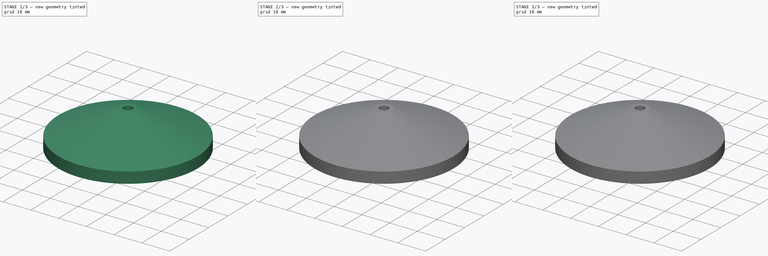
[diagram: build sequence overview — one tinted view per stage of 3, left to right]
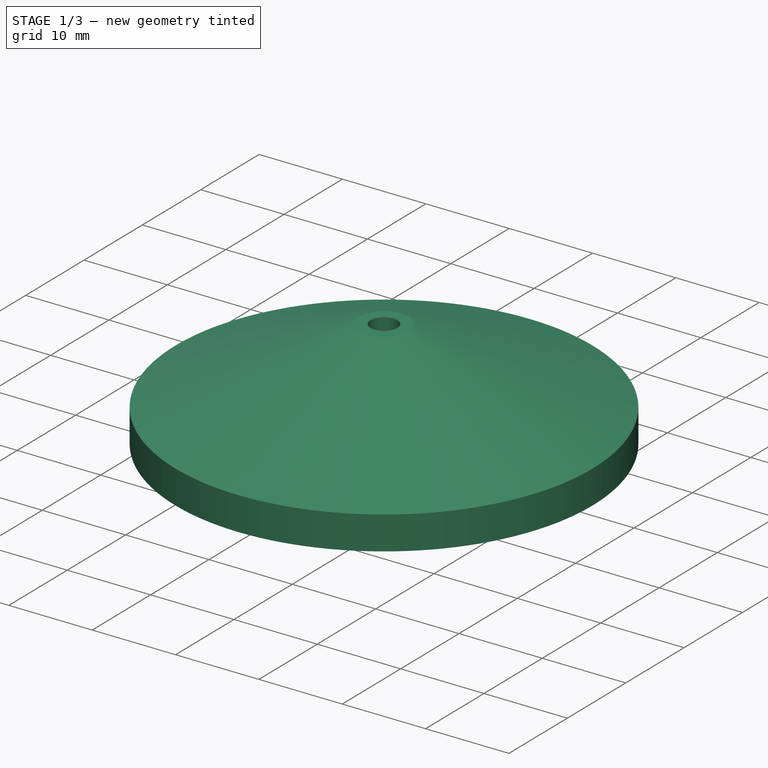
[diagram: stage 1 of 3 — iso view after this stage's code; geometry added in this stage tinted green]
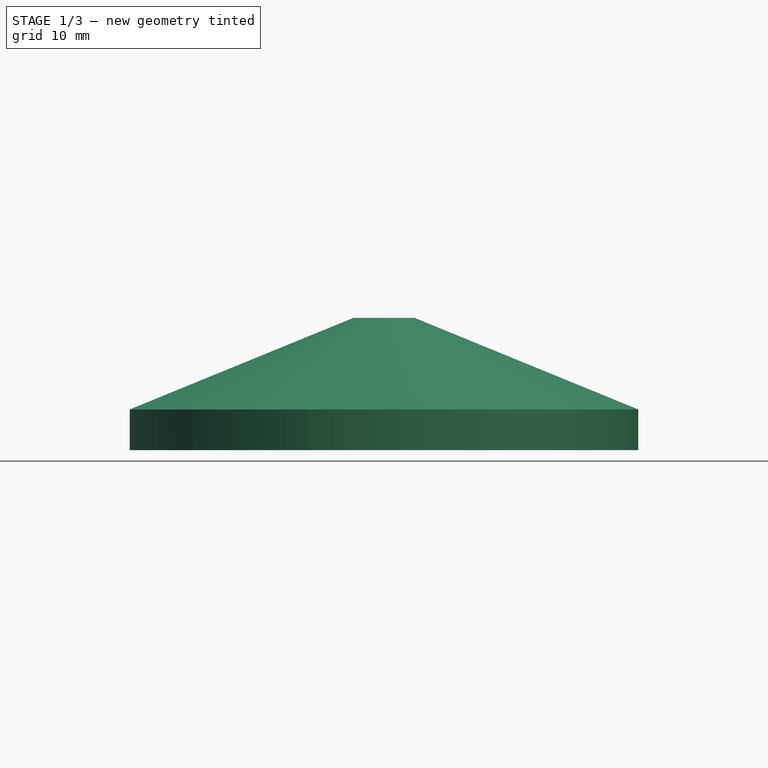
[diagram: stage 1 of 3 — front view after this stage's code; geometry added in this stage tinted green]
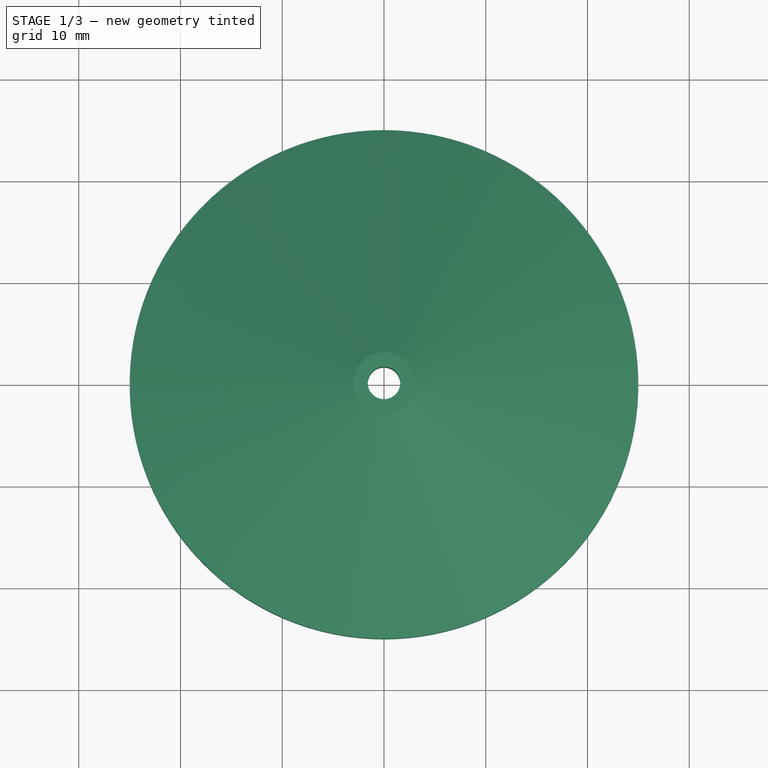
[diagram: stage 1 of 3 — top view after this stage's code; geometry added in this stage tinted green]
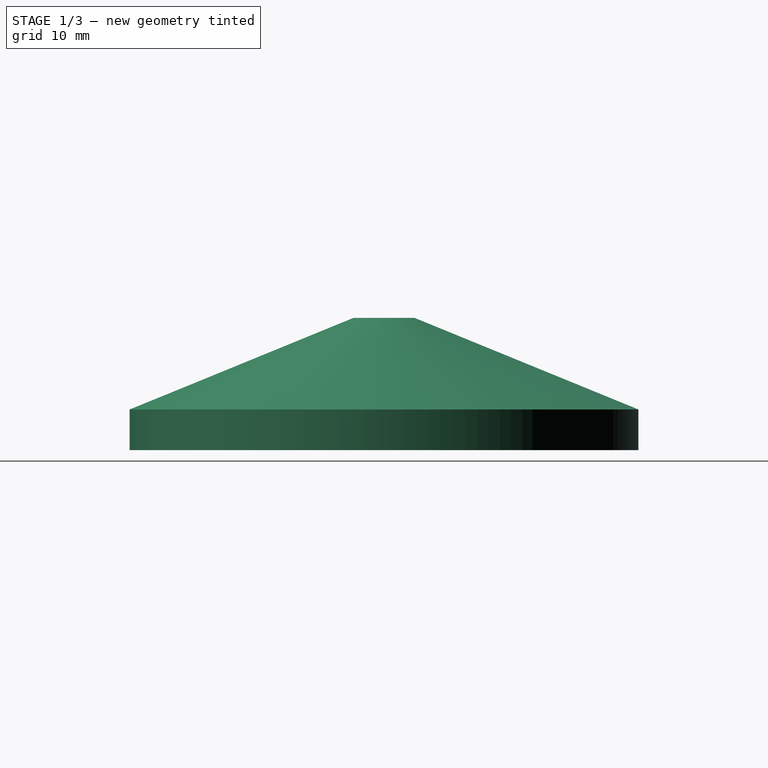
[diagram: stage 1 of 3 — right view after this stage's code; geometry added in this stage tinted green]
FCSTD DOCUMENT  (FreeCAD 0.18R14975 (Git))
Label: BobbinSocket_L_A1
License: All rights reserved
LicenseURL: http://en.wikipedia.org/wiki/All_rights_reserved
objects: Sketcher::SketchObject×3, PartDesign::Pocket×2, PartDesign::Chamfer×2, PartDesign::Revolution×1, PartDesign::Body×1, App::Part×1
note: 12 computed .brp shape members not serialized (recipe doc carries the construction recipe); baked Part::Feature solids carry a one-line shape summary decoded from their .brp

FEATURE [Sketcher::SketchObject] Sketch002
  MapMode = 5
  Placement = pos=(0,0,0) rot=(0.57735,0.57735,0.57735;2.0944rad)
  Support = -> [YZ_Plane001]
  sketch-geometry (5):
    g0: LineSegment StartX=1.6 StartY=13 StartZ=0 EndX=1.6 EndY=0 EndZ=0
    g1: LineSegment StartX=25 StartY=0 StartZ=0 EndX=25 EndY=4 EndZ=0
    g2: LineSegment StartX=1.6 StartY=0 StartZ=0 EndX=25 EndY=0 EndZ=0
    g3: LineSegment StartX=1.6 StartY=13 StartZ=0 EndX=3 EndY=13 EndZ=0
    g4: LineSegment StartX=3 StartY=13 StartZ=0 EndX=25 EndY=4 EndZ=0
  constraints (15):
    c: PointOnObject(g1,g-1)
    c: Vertical(g1)
    c: DistanceX(g-1,g0) = 1.6
    c: Vertical(g0)
    c: PointOnObject(g2,g-1)
    c: Coincident(g2,g1)
    c: DistanceY(g1,g1) = 4
    c: DistanceY(g-1,g0) = 13
    c: DistanceX(g-1,g1) = 25
    c: Coincident(g0,g3)
    c: Horizontal(g3)
    c: Coincident(g3,g4)
    c: Coincident(g4,g1)
    c: DistanceX(g-1,g3) = 3
    c: Coincident(g0,g2)
FEATURE [PartDesign::Revolution] Revolution
  Angle = 360
  Axis = (0,0,1)
  Base = (0,0,0)
  Placement = pos=(0,0,0) rot=(0.57735,0.57735,0.57735;2.0944rad)
  Profile = -> Sketch002
  ReferenceAxis = -> Sketch002 [V_Axis]
  Reversed = true
FEATURE [Sketcher::SketchObject] Sketch
  MapMode = 5
  Placement = pos=(0,0,0) rot=(0.707107,0.707107,0;3.14159rad)
  Support = -> [Revolution]
  sketch-geometry (4):
    g0: LineSegment StartX=-6 StartY=6 StartZ=0 EndX=6 EndY=6 EndZ=0
    g1: LineSegment StartX=6 StartY=6 StartZ=0 EndX=6 EndY=-6 EndZ=0
    g2: LineSegment StartX=6 StartY=-6 StartZ=0 EndX=-6 EndY=-6 EndZ=0
    g3: LineSegment StartX=-6 StartY=-6 StartZ=0 EndX=-6 EndY=6 EndZ=0
  constraints (10):
    c: Coincident(g0,g1)
    c: Coincident(g1,g2)
    c: Coincident(g2,g3)
    c: Coincident(g3,g0)
    c: Horizontal(g0)
    c: Vertical(g3)
    c: Symmetric(g1,g2,g-2)
    c: Symmetric(g0,g1,g-1)
    c: DistanceY(g1,g1) = 12
    c: DistanceX(g2,g2) = 12
FEATURE [PartDesign::Pocket] Pocket
  BaseFeature = -> Revolution
  Length = 6
  Length2 = 100
  Placement = pos=(0,0,0) rot=(0.57735,0.57735,0.57735;2.0944rad)
  Profile = -> Sketch
  Type = 0
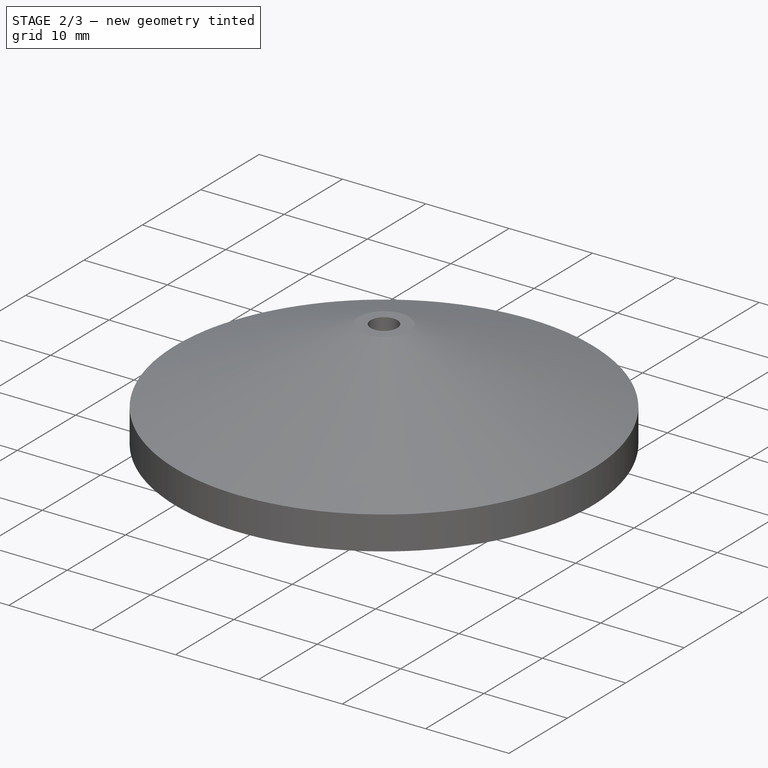
[diagram: stage 2 of 3 — iso view after this stage's code; geometry added in this stage tinted green]
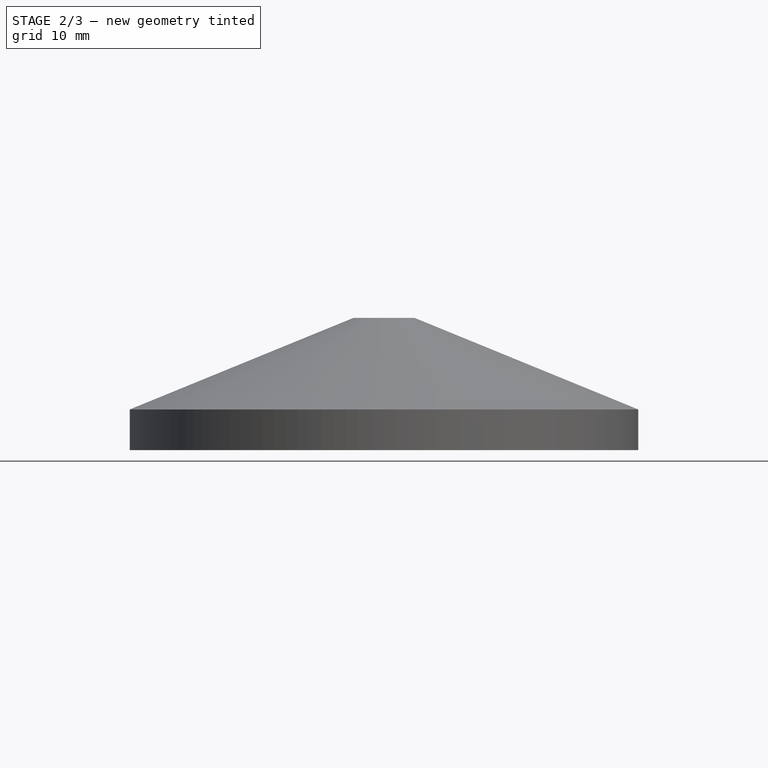
[diagram: stage 2 of 3 — front view after this stage's code; geometry added in this stage tinted green]
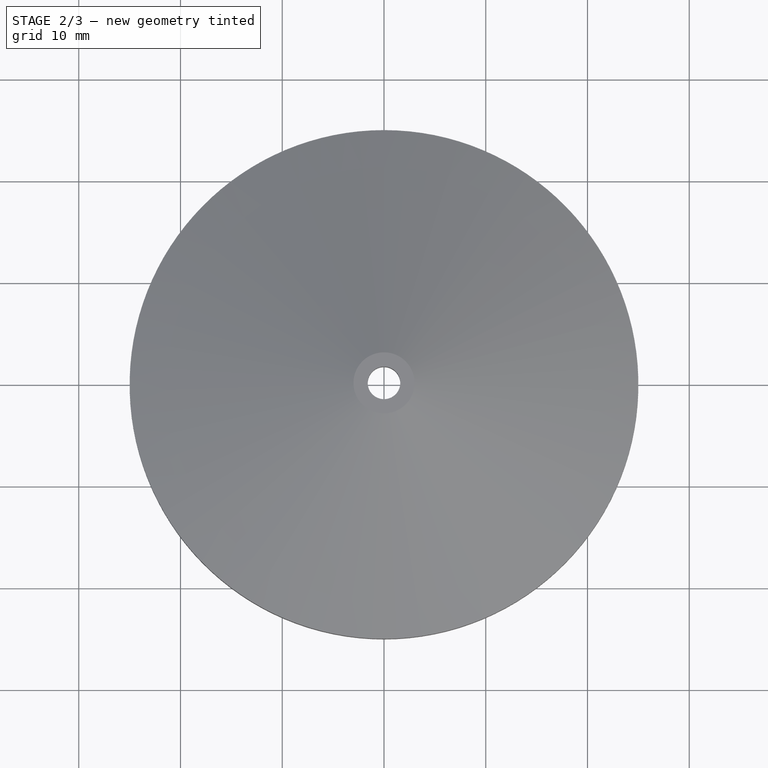
[diagram: stage 2 of 3 — top view after this stage's code; geometry added in this stage tinted green]
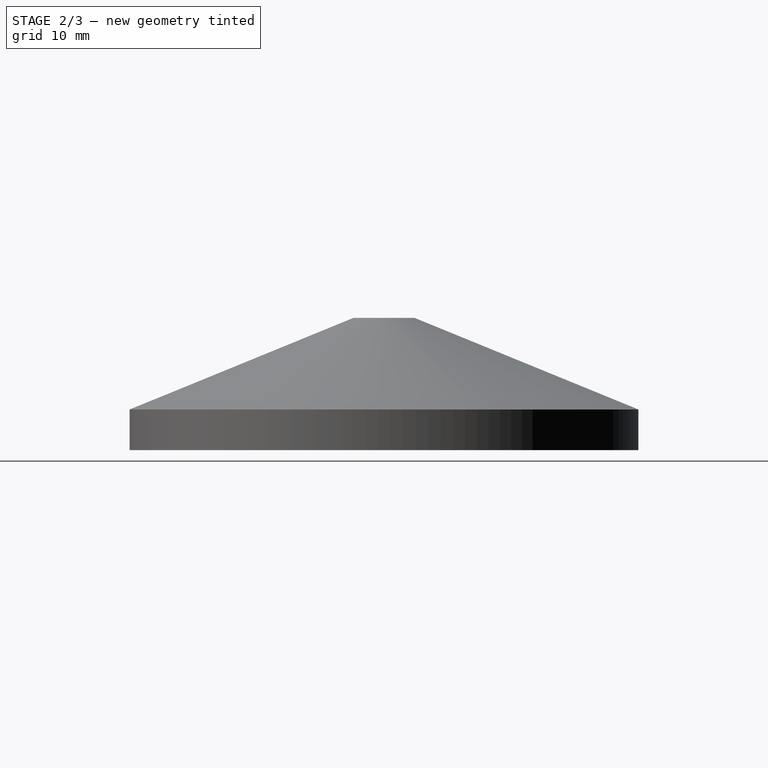
[diagram: stage 2 of 3 — right view after this stage's code; geometry added in this stage tinted green]
FEATURE [Sketcher::SketchObject] Sketch003
  MapMode = 5
  Placement = pos=(0,0,6) rot=(0.707107,0.707107,0;3.14159rad)
  Support = -> [Pocket]
  sketch-geometry (7):
    g0: LineSegment StartX=3.1 StartY=0 StartZ=0 EndX=1.55 EndY=2.68468 EndZ=0
    g1: LineSegment StartX=1.55 StartY=2.68468 StartZ=0 EndX=-1.55 EndY=2.68468 EndZ=0
    g2: LineSegment StartX=-1.55 StartY=2.68468 StartZ=0 EndX=-3.1 EndY=0 EndZ=0
    g3: LineSegment StartX=-3.1 StartY=0 StartZ=0 EndX=-1.55 EndY=-2.68468 EndZ=0
    g4: LineSegment StartX=-1.55 StartY=-2.68468 StartZ=0 EndX=1.55 EndY=-2.68468 EndZ=0
    g5: LineSegment StartX=1.55 StartY=-2.68468 StartZ=0 EndX=3.1 EndY=0 EndZ=0
    g6: Circle [constr] CenterX=0 CenterY=0 CenterZ=0 NormalX=0 NormalY=0 NormalZ=1 AngleXU=0 Radius=3.1
  constraints (16):
    c: Coincident(g0,g1)
    c: Coincident(g1,g2)
    c: Coincident(g2,g3)
    c: Coincident(g3,g4)
    c: Coincident(g4,g5)
    c: Coincident(g5,g0)
    c: Equal(g0, g1-g5) x5
    c: PointOnObject(g0,g6)
    c: PointOnObject(g1,g6)
    c: PointOnObject(g2,g6)
    c: PointOnObject(g3,g6)
    c: PointOnObject(g4,g6)
    c: PointOnObject(g5,g6)
    c: Radius(g6) = 3.1
    c: PointOnObject(g0,g-1)
    c: Coincident(g6,g-1)
FEATURE [PartDesign::Pocket] Pocket001
  BaseFeature = -> Pocket
  Length = 3
  Length2 = 100
  Placement = pos=(0,0,0) rot=(0.57735,0.57735,0.57735;2.0944rad)
  Profile = -> Sketch003
  Type = 0
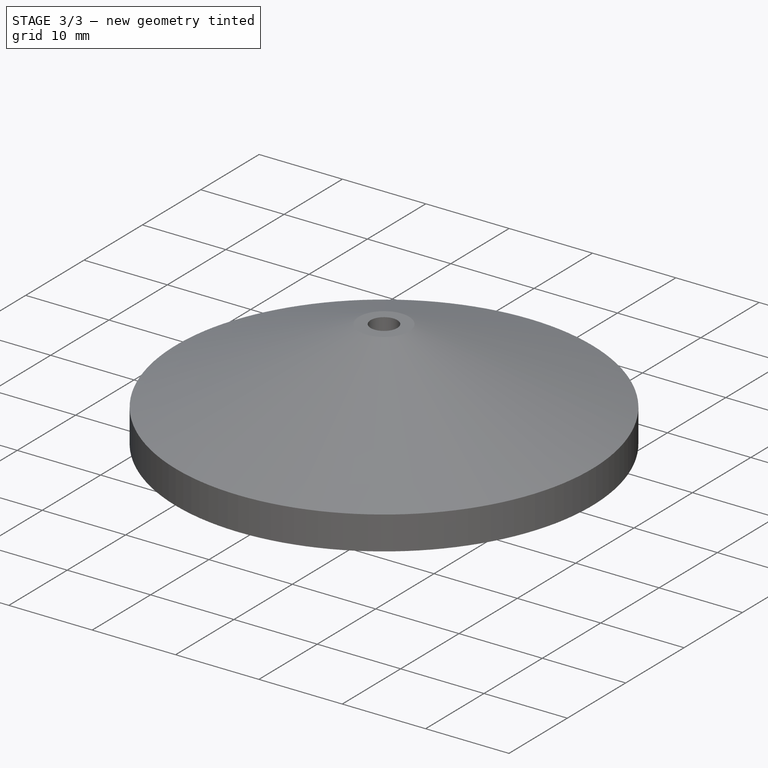
[diagram: stage 3 of 3 — iso view after this stage's code; geometry added in this stage tinted green]
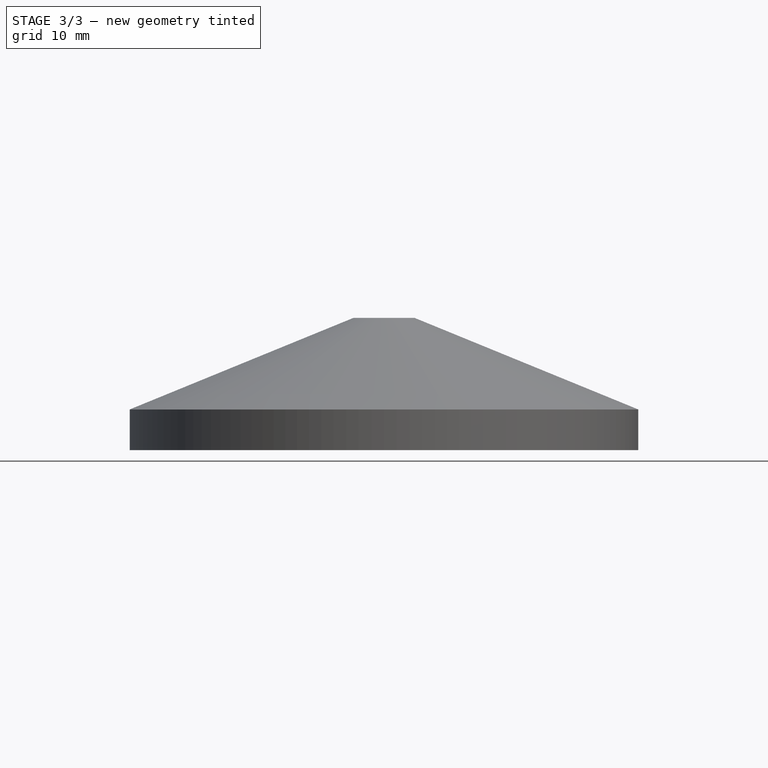
[diagram: stage 3 of 3 — front view after this stage's code; geometry added in this stage tinted green]
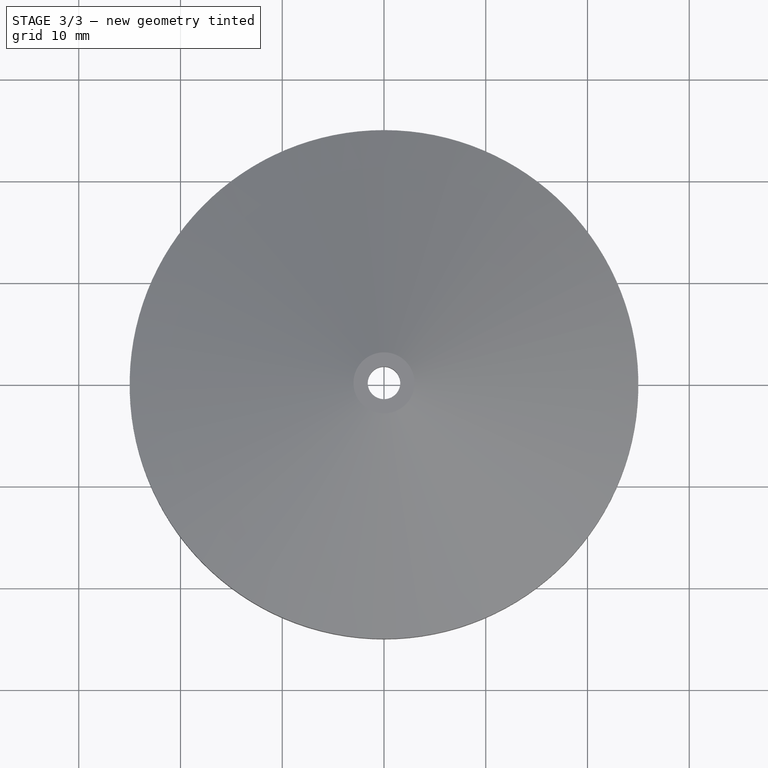
[diagram: stage 3 of 3 — top view after this stage's code; geometry added in this stage tinted green]
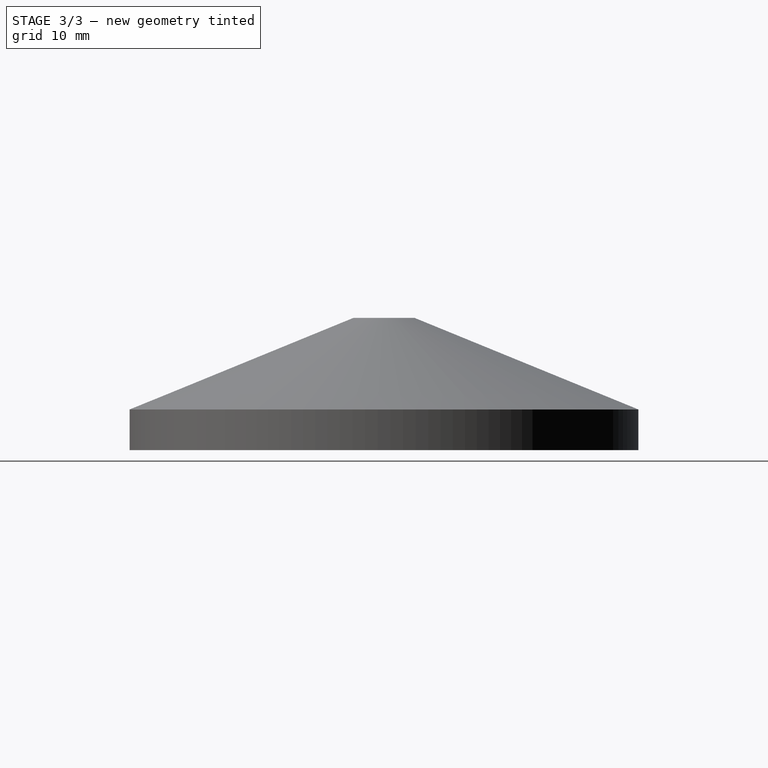
[diagram: stage 3 of 3 — right view after this stage's code; geometry added in this stage tinted green]
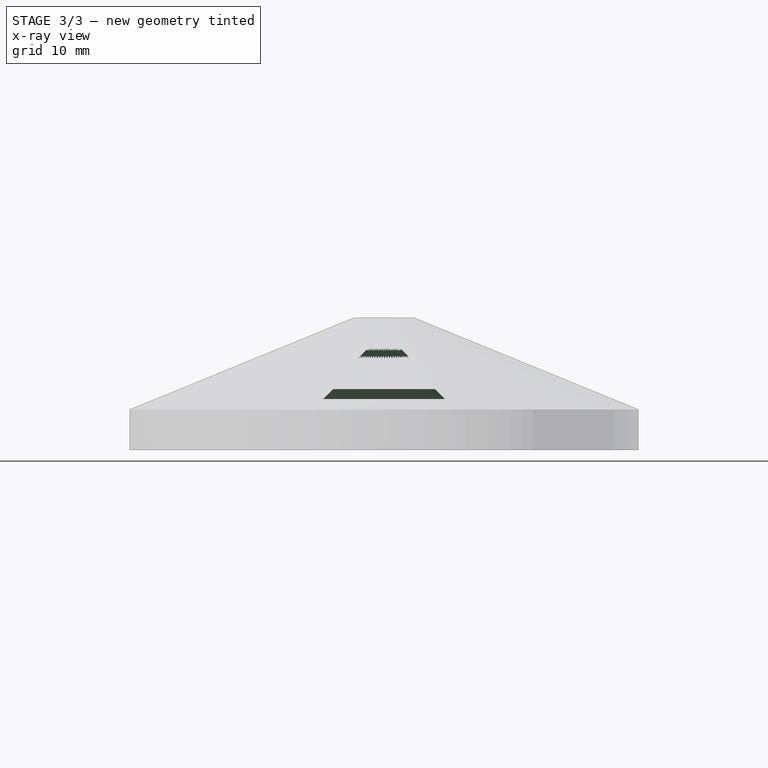
[diagram: stage 3 of 3 — x-ray composite at the right view; earlier geometry ghosted, this stage's added geometry solid]
FEATURE [PartDesign::Chamfer] Chamfer
  Base = -> Pocket001 [Edge28,Edge29,Edge30,Edge27]
  BaseFeature = -> Pocket001
  Placement = pos=(0,0,0) rot=(0.57735,0.57735,0.57735;2.0944rad)
  Size = 1
FEATURE [PartDesign::Chamfer] Chamfer001
  Base = -> Chamfer [Edge39]
  BaseFeature = -> Chamfer
  Placement = pos=(0,0,0) rot=(0.57735,0.57735,0.57735;2.0944rad)
  Size = 1
FEATURE [PartDesign::Body] Pocket001Body
  Group = -> [Sketch002,Revolution,Sketch,Pocket,Sketch003,Pocket001,Chamfer,Chamfer001]
  Origin = -> Origin001
  Tip = -> Chamfer001
FEATURE [App::Part] Part
  Group = -> [Pocket001Body]
  License = CC BY 3.0
  LicenseURL = http://creativecommons.org/licenses/by/3.0/
  Origin = -> Origin
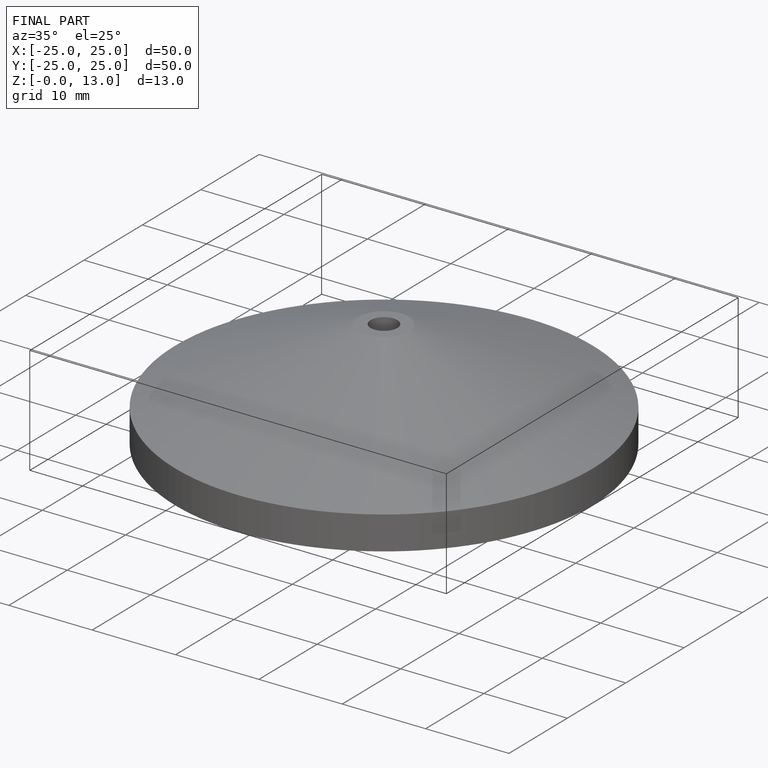
[diagram: finished part — iso view with bounding-box wireframe]
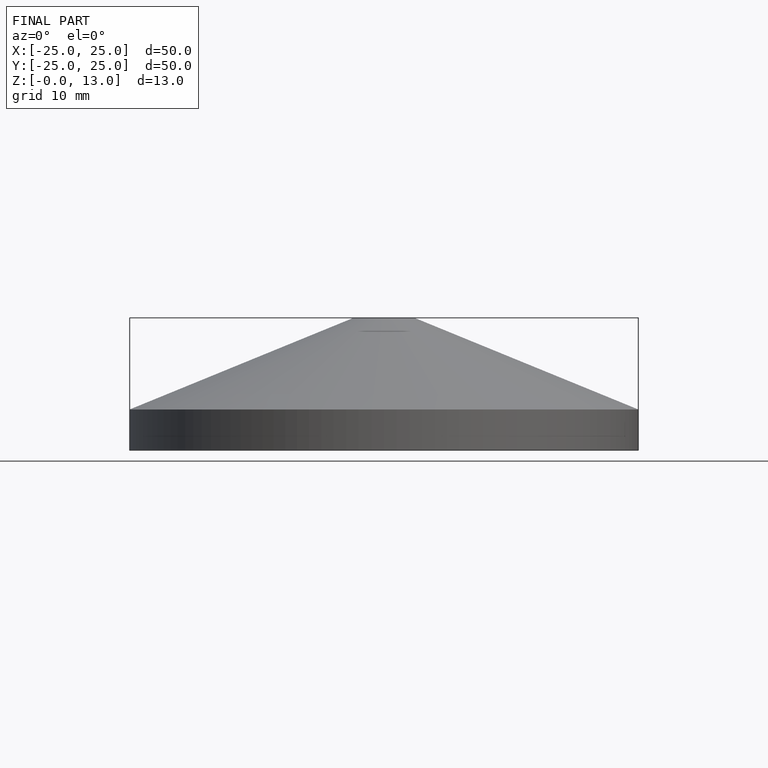
[diagram: finished part — front view with bounding-box wireframe]
